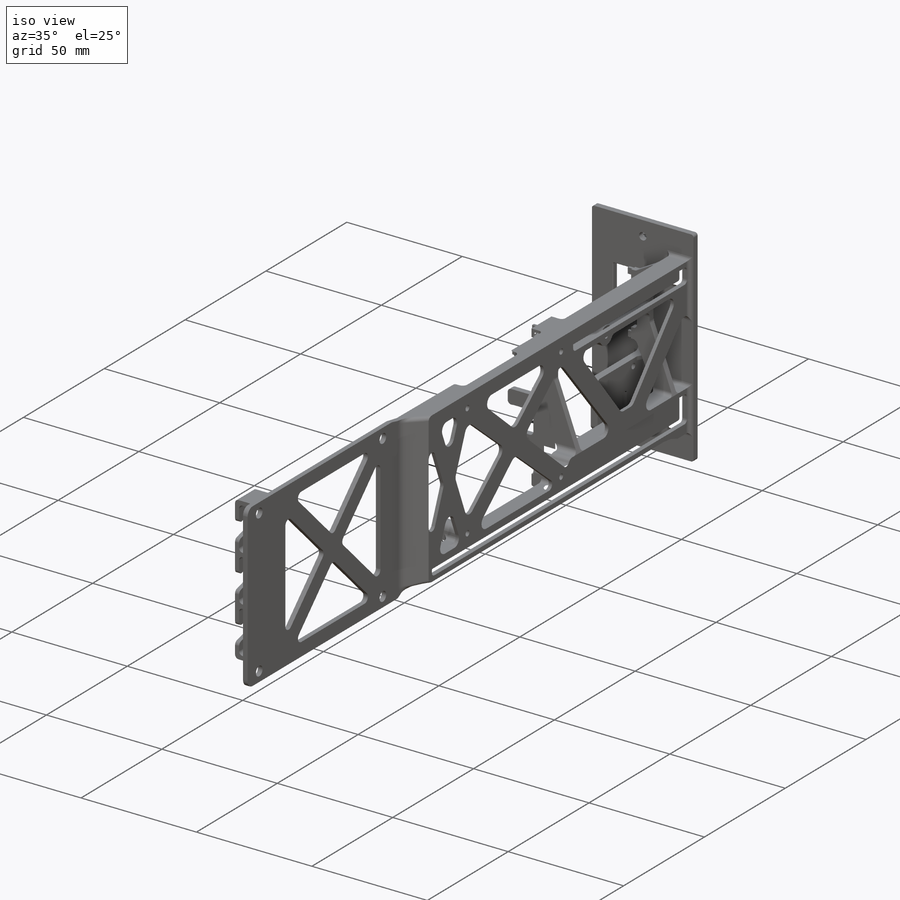
[diagram: iso view]
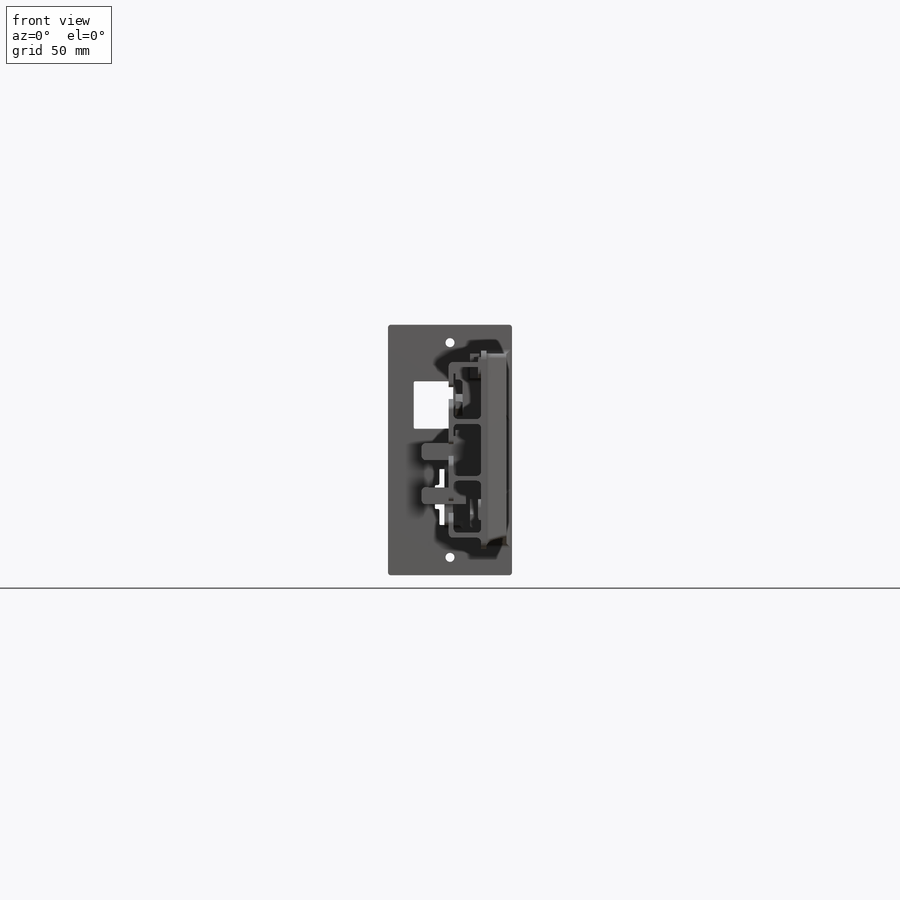
[diagram: front view]
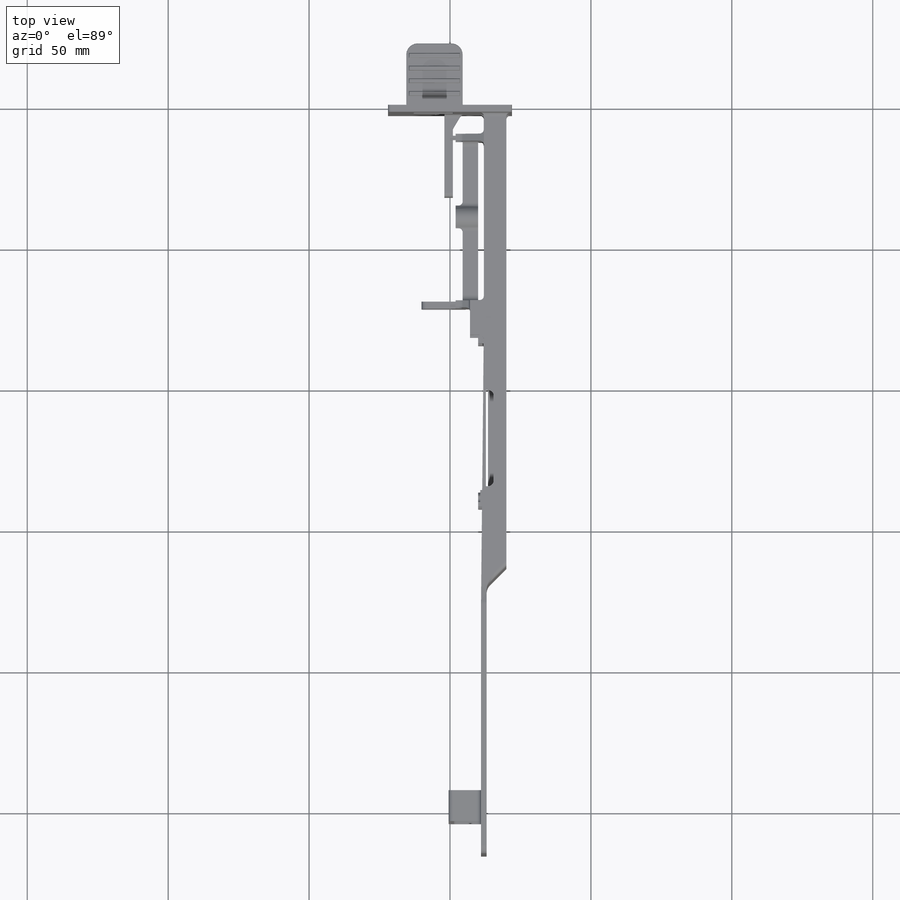
[diagram: top view]
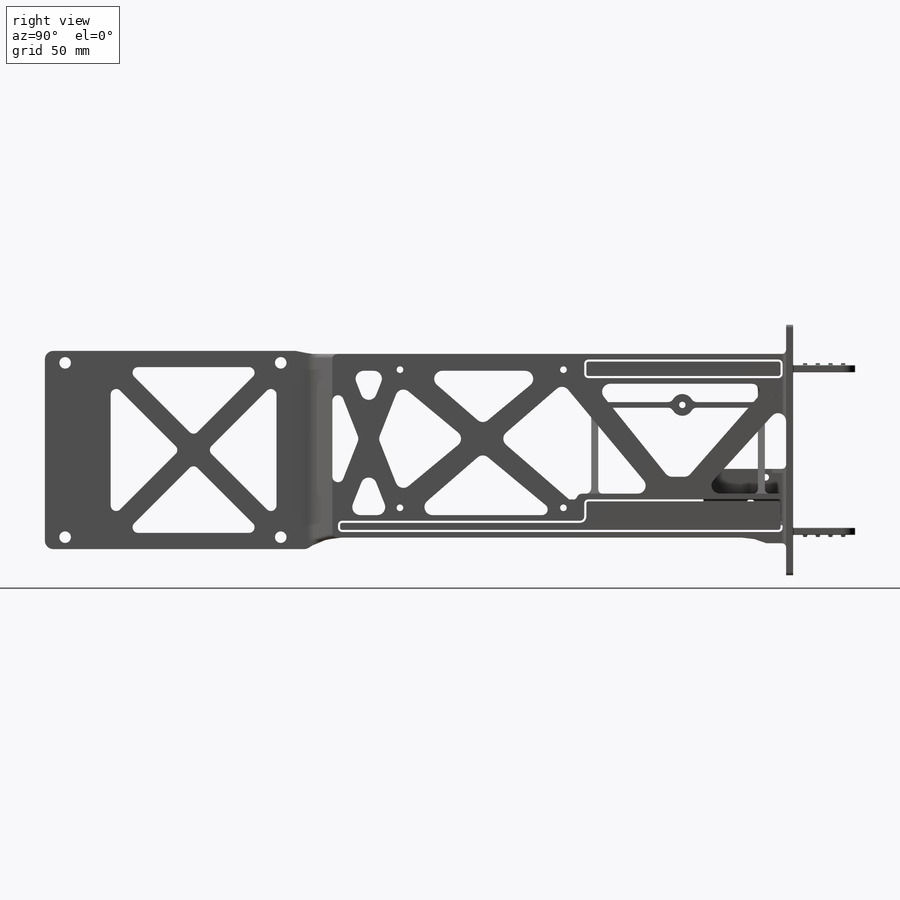
[diagram: right view]
SOLIDWORKS PART (.sldprt)
format: sldprt  version: not decoded by parser v0  size: 4,024,320 bytes
history: native  units: mm
features: sketch x31, fillet x27, extrude x19, plane x18, surface_op x11, cut_extrude x10, boolean_combine x8, mirror x6, material x1 (+12 scaffold rows collapsed)
feature tree (143):
  scaffold x12  (default folders/planes/origin — collapsed)
  material  "Material <not specified>"
  surface_op  "Surface-Offset2-C2"
  surface_op  "Surface-Offset1-C2-SDCard"
  plane  "Plane2-C2-bottom"
  plane  "Plane3-C2-top"
  plane  "Plane13-C2-aft"
  surface_op  "Surface-Offset5-SSD"
  surface_op  "Surface-Offset6-SSD"
  surface_op  "Surface-Offset12-SSD"
  surface_op  "Surface-Offset3-POE-bottom"
  plane  "Plane8-POE-bottom"  Offset=0mm
  surface_op  "Surface-Offset4-POE"
  surface_op  "Surface-Offset10-POE"
  surface_op  "Surface-Offset1-UART-top"
  surface_op  "Surface-Offset2-UART-bottom"
  surface_op  "Surface-Offset3-UART-conn"
  sketch  "Front Face"  dims[c1.D1=3.175mm c1.D2=8.0mm c1.D3=76.2mm c1.D4=3.0mm c2.D2=88.9mm c2.D5=44.0mm c2.D6=3.0mm]
  extrude  "Boss-Extrude1-FrontFace"  Depth=2.5mm
  plane  "Plane-FaceRear"
  plane  "Plane7-Semi-mid"  Offset=4.2mm
  sketch  "Sketch6-POE-bottom"  dims[D1=7.75mm D2=2.275mm D3=2.5mm D4=2.5mm D5=1.0mm D6=0.35mm D7=0.35mm]
  extrude  "Boss-Extrude19-POE-support"  Depth=8mm
  plane  "Plane25-POE-Mid"
  plane  "Plane27-POE-Center"
  sketch  "Sketch33"  dims[D1=2.5mm D2=1.75mm]
  cut_extrude  "Cut-Extrude7-POE-support-relief-fwd"  Depth=4mm
  plane  "Plane30-POE-support-aft"
  cut_extrude  "Cut-Extrude8-POE-support-relief-aft"  [1 undecoded]
  sketch  "Sketch33<2>"  dims[D19=4.0mm]
  extrude  "Boss-Extrude19-POE-pos-tab"  [1 undecoded]
  sketch  "Sketch6-POE-bottom<7>"  dims[D1=2.0mm]
  mirror  "Mirror16-POE-pos-tab"
  cut_extrude  "Cut-Extrude7-POE-hole"  [1 undecoded]
  sketch  "Sketch6-POE-bottom<8>"
  sketch  "Sketch2"  dims[c1.D1=8.0mm c1.D2=8.0mm c1.D3=2.5mm c1.D4=6.0mm c1.D5=15.0mm c1.D6=2.0mm c2.D1=2.0mm c2.D3=10.5mm c2.D4=7.0mm c2.D6=2.0mm c2.D5=7.0mm c2.D7=17.0mm c2.D8=4.0mm c2.D9=~6.947279mm c3.D9=135.0deg c3.D10=2.0mm]
  extrude  "Boss-Extrude2-Chassis-side"  Depth=100mm
  sketch  "Sketch3-Chassis-top"  dims[c1.D1=~116.879957mm c1.D2=4.25mm c1.D3=4.25mm c1.D4=2.5mm c1.D5=1.0mm c1.D6=2.0mm c2.D4=7.0mm]
  extrude  "Boss-Extrude3-Chassis-top"  Depth=50mm
  boolean_combine  "Combine1"
  sketch  "Sketch4"  dims[c1.D1=5.0mm c1.D2=2.0mm c1.D3=8.0mm c2.D2=2.0mm c2.D4=7.0mm c2.D5=2.0mm c2.D1=6.0mm c3.D5=0.5mm c3.D6=7.0mm]
  cut_extrude  "Cut-Extrude1-Chassis-relief"  [1 undecoded]
  sketch  "Sketch36"  dims[D1=2.0mm D2=10.0mm]
  extrude  "Boss-Extrude25-POE-support-flg-aft"  [1 undecoded]
  plane  "Plane33-POE-support-frontface"
  plane  "Plane34-POE-support-mid"
  extrude  "Boss-Extrude26-POE-support-flg-frt"  [1 undecoded]
  sketch  "Sketch36<3>"
  fillet  "Fillet47-POE-support"  Radius=2mm
  sketch  "Sketch34"  dims[c1.D1=1.0mm c1.D2=1.5mm c1.D3=3.5mm c2.D2=1.0mm c2.D4=~173.790553mm]
  extrude  "Boss-Extrude20-Rail-relief"  Depth=3.5mm
  boolean_combine  "Combine6"
  sketch  "Sketch35-SBC-MNT-Boss"  dims[c1.D5=2.35mm c1.D1=4.0mm c1.D2=4.0mm c2.D1=3.0mm c2.D2=3.0mm c2.D3=3.0mm c2.D4=3.0mm]
  plane  "Plane29-C2-MNT-Center"
  sketch  "Sketch7"  dims[D1=1.75mm D2=1.5mm]
  boolean_combine  "Combine2"
  sketch  "Sketch8"  dims[c1.D1=2.5mm c1.D2=2.5mm c1.D3=0.4mm c2.D1=80.0mm c3.D1=20.0mm c4.D1=2.5mm c5.D1=1.5mm]
  boolean_combine  "Combine5"
  sketch  "Sketch12"  dims[c1.D1=~6.565555mm c2.D1=90.0deg c3.D1=0.05mm c3.D2=0.05mm c3.D3=3.5mm c3.D4=1.0mm c3.D5=0.05mm]
  extrude  "Boss-Extrude8-Front Notch Base"  Depth=0.75mm
  plane  "Plane11"
  extrude  "Boss-Extrude9-Front Notch"  [1 undecoded]
  sketch  "Sketch12<2>"  dims[c1.D1=1.25mm c1.D19=0.65mm c2.D1=1.25mm c3.D1=1.25mm]
  sketch  "Sketch15"  dims[c1.D1=9.1mm c1.D2=8.5mm c1.D3=2.0mm c1.D4=6.0mm c1.D5=0.1mm c1.D6=9.75mm c2.D2=8.5mm c2.D7=21.75mm c3.D2=1.0mm]
  extrude  "Boss-Extrude10-POE-Cable-holder"  [1 undecoded]
  fillet  "Fillet10-POE-Cable-holder"  Radius=1.5mm
  plane  "Plane15"
  sketch  "Sketch19"  dims[c1.D1=1.75mm c1.D2=15.0mm c1.D3=4.0mm c2.D2=10.0mm]
  extrude  "Boss-Extrude13-Cable-guides"  Depth=11mm
  sketch  "Sketch20-Cable-guide-cut"  dims[c1.D1=6.0mm c1.D2=13.0mm c2.D2=105.0deg]
  cut_extrude  "Cut-Extrude9-Cable-guides-cut"  Depth=6mm
  boolean_combine  "Combine7-Aft-Cable-Mgmt"
  fillet  "Fillet50-Cable-guide-fillets"  Radius=1.5mm
  sketch  "Sketch30"  dims[D1=2.5mm D2=20.0mm D3=4.5mm D4=5.0mm]
  extrude  "Boss-Extrude17-Tabs-front-face"  Depth=22mm
  fillet  "Fillet43"  Radius=4mm
  plane  "Plane23"
  sketch  "Sketch31-Tab-grip"  dims[D1=3.0mm D2=1.5mm D3=0.75mm D4=2.0mm]
  plane  "Plane24"
  extrude  "Boss-Extrude18-Tab-grip"  Depth=18mm
  mirror  "Mirror15-Tab-grip"
  fillet  "Fillet45-Tab-grip-fillet"  Radius=0.25mm
  mirror  "Mirror9"
  boolean_combine  "Combine10-Tab-grip"
  sketch  "Sketch37"  dims[c1.D1=2.1mm c1.D2=2.0mm c2.D1=0.75mm c2.D2=3.0mm c3.D1=5.0mm]
  extrude  "Boss-Extrude1-UART-base"  Depth=3mm
  sketch  "Sketch38"  dims[D1=3.0mm D2=5.0mm]
  extrude  "Boss-Extrude2-UART-canti-support"  Depth=1.5mm
  plane  "Plane25-UART-center"
  mirror  "Mirror4"
  sketch  "Sketch39"  dims[D1=0.2mm D2=0.25mm D3=0.2mm D4=0.2mm D5=0.25mm]
  cut_extrude  "Cut-Extrude30-UART-access"  [1 undecoded]
  plane  "Plane25-Chassis-arm-midplane"
  sketch  "Sketch40"  dims[c1.D1=1.25mm c1.D2=2.5mm c1.D3=2.0mm c1.D4=2.0mm c1.D5=2.0mm c2.D2=2.0mm]
  cut_extrude  "Cut-Extrude4-Chassis-arm-lightening"  Depth=1.25mm
  sketch  "Sketch41"  dims[c1.D1=6.0mm c1.D2=~53.820871mm c2.D2=1.0deg c2.D3=~42.814906mm c3.D3=1.0deg c3.D4=7.0mm c3.D5=6.0mm]
  extrude  "Boss-Extrude1-Fwd-bracing"  Depth=1.5mm
  sketch  "Sketch43"  dims[c1.D1=~72.325723mm c2.D1=2.0deg c2.D2=~48.080887mm c3.D2=2.0deg c3.D3=5.0mm]
  extrude  "Boss-Extrude4-Aft-bracing"  Depth=1.5mm
  mirror  "Mirror6"
  extrude  "Boss-Extrude21-SBC-MNT-Boss"  Depth=9.5mm
  fillet  "Fillet46-C2-MNT-Boss-fillet"  Radius=2.85mm
  mirror  "Mirror5"
  sketch  "Sketch42"  dims[D1=2.0mm D2=2.0mm]
  cut_extrude  "Cut-Extrude5-Chassis-arm-lightening2"  Depth=1.25mm
  cut_extrude  "Cut-Extrude8-C2-MNT-hole-thru"  [1 undecoded]
  sketch  "Sketch35-SBC-MNT-Boss<4>"
  fillet  "Fillet44"  Radius=2.85mm
  fillet  "Fillet45"  Radius=2mm
  fillet  "Fillet46"  Radius=2mm
  sketch  "Sketch44"  dims[c1.D1=2.5mm c1.D2=3.0mm c1.D3=~27.395963mm c2.D1=7.0mm c2.D2=7.0mm c2.D3=1.5mm]
  cut_extrude  "Cut-Extrude6"  [1 undecoded]
  fillet  "Fillet47"  Radius=2mm
  fillet  "Fillet48"  Radius=20mm
  fillet  "Fillet49"  Radius=3mm
  boolean_combine  "Combine8"
  fillet  "Fillet51"  Radius=0.5mm
  fillet  "Fillet52"  Radius=0.5mm
  fillet  "Fillet53"  Radius=0.25mm
  fillet  "Fillet54"  Radius=1.5mm
  fillet  "Fillet55"  Radius=1mm
  fillet  "Fillet56"  Radius=1.5mm
  boolean_combine  "Combine11"
  fillet  "Fillet57"  Radius=2mm
  fillet  "Fillet58"  Radius=2mm
  fillet  "Fillet60"  Radius=1.5mm
  fillet  "Fillet61"  Radius=4mm
  fillet  "Fillet62"  Radius=1.5mm
  fillet  "Fillet63"  Radius=1.5mm
  fillet  "Fillet64"  Radius=0.75mm
  fillet  "Fillet65"  Radius=0.75mm
  fillet  "Fillet66"  Radius=0.75mm
decode coverage: 73 of 112 modeling features carry decoded parameters
note: ~ marks probable driven/reference dimensions
note: 11 parameter values undecoded
summary: no parameter record found for 11 features
note: suppression state not decoded; provenance and decode notes live in map.json
